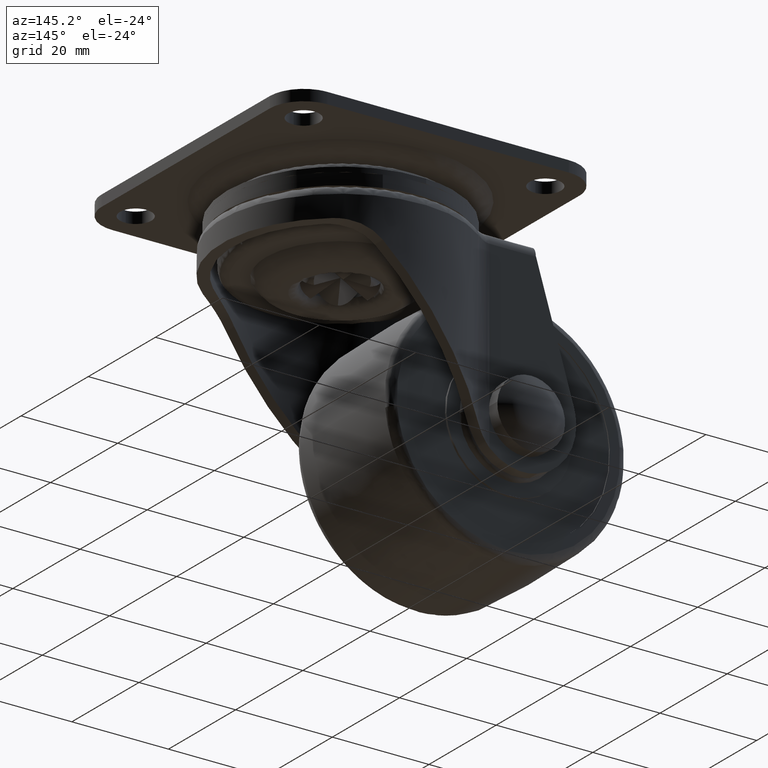
[diagram: clean part render]
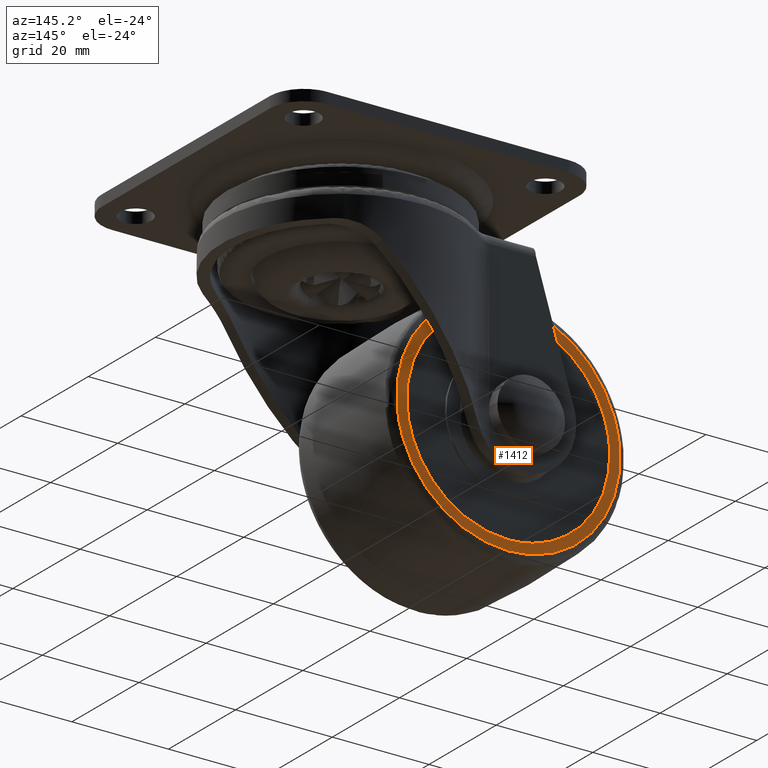
[diagram: same view with one face highlighted and labeled with its STEP entity id]
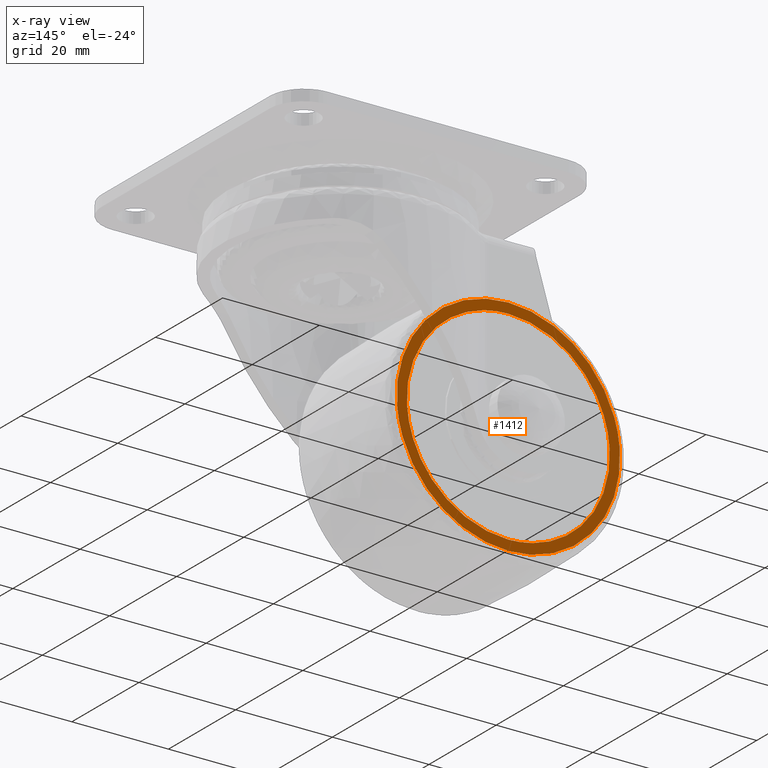
[diagram: x-ray of the same camera — body ghosted, the highlighted face saturated]
A machine part, auxiliary view. The second image highlights one B-rep face of the part: STEP entity #1412.
The next image is the same camera in x-ray: the body ghosted, the highlighted face saturated — about 0% of this face is hidden behind the body in this view.
In plain terms, the highlighted face is a freeform B-spline surface patch.
Its self-contained STEP definition (entity closure, byte-faithful):
#784=CARTESIAN_POINT('',(-1.983304943742823,14.000000000000121,-45.029892559580972));
#785=VERTEX_POINT('',#784);
#786=CARTESIAN_POINT('',(-25.0,14.000000000000121,-19.893968000000001));
#787=VERTEX_POINT('',#786);
#788=CARTESIAN_POINT('',(-1.983304943742823,14.000000000000115,-45.029892559580965));
#789=CARTESIAN_POINT('',(-1.893967993005624,14.000000000000119,-44.016912170050034));
#790=CARTESIAN_POINT('',(-1.893967993162708,14.000000000000121,-43.000000000603009));
#791=CARTESIAN_POINT('',(-1.893967996731811,14.000000000000119,-19.893968000288236));
#792=CARTESIAN_POINT('',(-25.0,14.000000000000121,-19.893968000000001));
#800=(BOUNDED_CURVE()B_SPLINE_CURVE(2,(#788,#789,#790,#791,#792),.UNSPECIFIED.,.F.,.U.)B_SPLINE_CURVE_WITH_KNOTS((3,2,3),(0.234718454854472,0.250000000000000,0.500000000000000),.UNSPECIFIED.)CURVE()GEOMETRIC_REPRESENTATION_ITEM()RATIONAL_B_SPLINE_CURVE((0.966381850706687,0.982096556215532,1.0,0.707106781186547,1.0))REPRESENTATION_ITEM(''));
#801=EDGE_CURVE('',#785,#787,#800,.T.);
#803=CARTESIAN_POINT('',(-48.016695056257177,14.000000000000110,-40.970107440419042));
#804=VERTEX_POINT('',#803);
#805=CARTESIAN_POINT('',(-25.0,14.000000000000121,-19.893968000000001));
#806=CARTESIAN_POINT('',(-46.157944327116589,14.000000000000123,-19.893967999685227));
#807=CARTESIAN_POINT('',(-48.016695056257177,14.000000000000115,-40.970107440419035));
#815=(BOUNDED_CURVE()B_SPLINE_CURVE(2,(#805,#806,#807),.UNSPECIFIED.,.F.,.U.)B_SPLINE_CURVE_WITH_KNOTS((3,3),(0.500000000000000,0.734718454854472),.UNSPECIFIED.)CURVE()GEOMETRIC_REPRESENTATION_ITEM()RATIONAL_B_SPLINE_CURVE((1.0,0.725010224971015,0.966381850706687))REPRESENTATION_ITEM(''));
#816=EDGE_CURVE('',#787,#804,#815,.T.);
#872=CARTESIAN_POINT('',(-25.0,14.000000000000110,-66.106031999999999));
#873=VERTEX_POINT('',#872);
#874=CARTESIAN_POINT('',(-25.0,14.000000000000110,-66.106031999999999));
#875=CARTESIAN_POINT('',(-3.842055672883411,14.000000000000108,-66.106032000314755));
#876=CARTESIAN_POINT('',(-1.983304943742823,14.000000000000117,-45.029892559580972));
#884=(BOUNDED_CURVE()B_SPLINE_CURVE(2,(#874,#875,#876),.UNSPECIFIED.,.F.,.U.)B_SPLINE_CURVE_WITH_KNOTS((3,3),(0.0,0.234718454854471),.UNSPECIFIED.)CURVE()GEOMETRIC_REPRESENTATION_ITEM()RATIONAL_B_SPLINE_CURVE((1.0,0.725010224971015,0.966381850706687))REPRESENTATION_ITEM(''));
#885=EDGE_CURVE('',#873,#785,#884,.T.);
#891=CARTESIAN_POINT('',(-48.016695056257177,14.000000000000115,-40.970107440419035));
#892=CARTESIAN_POINT('',(-48.106032006994383,14.000000000000119,-41.983087829949980));
#893=CARTESIAN_POINT('',(-48.106032006837303,14.000000000000110,-42.999999999397012));
#894=CARTESIAN_POINT('',(-48.106032003268190,14.000000000000110,-66.106031999711789));
#895=CARTESIAN_POINT('',(-25.0,14.000000000000110,-66.106031999999999));
#903=(BOUNDED_CURVE()B_SPLINE_CURVE(2,(#891,#892,#893,#894,#895),.UNSPECIFIED.,.F.,.U.)B_SPLINE_CURVE_WITH_KNOTS((3,2,3),(0.734718454854472,0.750000000000000,1.0),.UNSPECIFIED.)CURVE()GEOMETRIC_REPRESENTATION_ITEM()RATIONAL_B_SPLINE_CURVE((0.966381850706687,0.982096556215532,1.0,0.707106781186547,1.0))REPRESENTATION_ITEM(''));
#904=EDGE_CURVE('',#804,#873,#903,.T.);
#1335=CARTESIAN_POINT('',(-50.407824252572667,14.000000000000121,-17.585675492767940));
#1336=CARTESIAN_POINT('',(-50.407824252572667,14.000000000000121,-68.414325746736210));
#1337=CARTESIAN_POINT('',(0.407824665735497,14.000000000000121,-17.585675492767940));
#1338=CARTESIAN_POINT('',(0.407824665735497,14.000000000000121,-68.414325746736210));
#1339=B_SPLINE_SURFACE_WITH_KNOTS('',1,1,((#1335,#1337),(#1336,#1338)),.UNSPECIFIED.,.F.,.F.,.U.,(2,2),(2,2),(0.0,50.828650253968270),(0.0,50.815648918308163),.UNSPECIFIED.);
#1340=ORIENTED_EDGE('',*,*,#904,.F.);
#1341=ORIENTED_EDGE('',*,*,#816,.F.);
#1342=ORIENTED_EDGE('',*,*,#801,.F.);
#1343=ORIENTED_EDGE('',*,*,#885,.F.);
#1344=EDGE_LOOP('',(#1340,#1341,#1342,#1343));
#1345=FACE_OUTER_BOUND('',#1344,.T.);
#1346=CARTESIAN_POINT('',(-25.0,14.000000000000121,-22.0));
#1347=VERTEX_POINT('',#1346);
#1348=CARTESIAN_POINT('',(-45.960830964359843,14.000000000000121,-41.717983898883027));
#1349=VERTEX_POINT('',#1348);
#1350=CARTESIAN_POINT('',(-25.0,14.000000000000121,-22.0));
#1351=CARTESIAN_POINT('',(-44.754830454031314,14.000000000000119,-22.0));
#1352=CARTESIAN_POINT('',(-45.960830964360092,14.000000000000124,-41.717983898883034));
#1360=(BOUNDED_CURVE()B_SPLINE_CURVE(2,(#1350,#1351,#1352),.UNSPECIFIED.,.F.,.U.)B_SPLINE_CURVE_WITH_KNOTS((3,3),(0.500000000000000,0.739332988823617),.UNSPECIFIED.)CURVE()GEOMETRIC_REPRESENTATION_ITEM()RATIONAL_B_SPLINE_CURVE((1.0,0.719603962140827,0.976072098642742))REPRESENTATION_ITEM(''));
#1361=EDGE_CURVE('',#1347,#1349,#1360,.T.);
#1362=ORIENTED_EDGE('',*,*,#1361,.T.);
#1363=CARTESIAN_POINT('',(-25.0,14.000000000000121,-64.0));
#1364=VERTEX_POINT('',#1363);
#1365=CARTESIAN_POINT('',(-45.960830964359843,14.000000000000124,-41.717983898883034));
#1366=CARTESIAN_POINT('',(-45.999999999999993,14.000000000000121,-42.358393589814199));
#1367=CARTESIAN_POINT('',(-46.0,14.000000000000121,-43.0));
#1368=CARTESIAN_POINT('',(-46.000000000000014,14.000000000000123,-64.0));
#1369=CARTESIAN_POINT('',(-25.0,14.000000000000121,-64.0));
#1377=(BOUNDED_CURVE()B_SPLINE_CURVE(2,(#1365,#1366,#1367,#1368,#1369),.UNSPECIFIED.,.F.,.U.)B_SPLINE_CURVE_WITH_KNOTS((3,2,3),(0.739332988823617,0.750000000000000,1.0),.UNSPECIFIED.)CURVE()GEOMETRIC_REPRESENTATION_ITEM()RATIONAL_B_SPLINE_CURVE((0.976072098642742,0.987502819045721,1.0,0.707106781186547,1.0))REPRESENTATION_ITEM(''));
#1378=EDGE_CURVE('',#1349,#1364,#1377,.T.);
#1379=ORIENTED_EDGE('',*,*,#1378,.T.);
#1380=CARTESIAN_POINT('',(-4.039169035640160,14.000000000000121,-44.282016101116980));
#1381=VERTEX_POINT('',#1380);
#1382=CARTESIAN_POINT('',(-25.0,14.000000000000121,-64.0));
#1383=CARTESIAN_POINT('',(-5.245169545968698,14.000000000000130,-64.0));
#1384=CARTESIAN_POINT('',(-4.039169035639908,14.000000000000121,-44.282016101117001));
#1392=(BOUNDED_CURVE()B_SPLINE_CURVE(2,(#1382,#1383,#1384),.UNSPECIFIED.,.F.,.U.)B_SPLINE_CURVE_WITH_KNOTS((3,3),(0.0,0.239332988823617),.UNSPECIFIED.)CURVE()GEOMETRIC_REPRESENTATION_ITEM()RATIONAL_B_SPLINE_CURVE((1.0,0.719603962140827,0.976072098642742))REPRESENTATION_ITEM(''));
#1393=EDGE_CURVE('',#1364,#1381,#1392,.T.);
#1394=ORIENTED_EDGE('',*,*,#1393,.T.);
#1395=CARTESIAN_POINT('',(-4.039169035640160,14.000000000000121,-44.282016101116980));
#1396=CARTESIAN_POINT('',(-4.0,14.000000000000124,-43.641606410185823));
#1397=CARTESIAN_POINT('',(-4.0,14.000000000000121,-43.0));
#1398=CARTESIAN_POINT('',(-4.0,14.000000000000123,-21.999999999999993));
#1399=CARTESIAN_POINT('',(-25.0,14.000000000000121,-22.0));
#1407=(BOUNDED_CURVE()B_SPLINE_CURVE(2,(#1395,#1396,#1397,#1398,#1399),.UNSPECIFIED.,.F.,.U.)B_SPLINE_CURVE_WITH_KNOTS((3,2,3),(0.239332988823617,0.250000000000000,0.500000000000000),.UNSPECIFIED.)CURVE()GEOMETRIC_REPRESENTATION_ITEM()RATIONAL_B_SPLINE_CURVE((0.976072098642742,0.987502819045720,1.0,0.707106781186547,1.0))REPRESENTATION_ITEM(''));
#1408=EDGE_CURVE('',#1381,#1347,#1407,.T.);
#1409=ORIENTED_EDGE('',*,*,#1408,.T.);
#1410=EDGE_LOOP('',(#1362,#1379,#1394,#1409));
#1411=FACE_BOUND('',#1410,.T.);
#1412=ADVANCED_FACE('',(#1345,#1411),#1339,.F.);